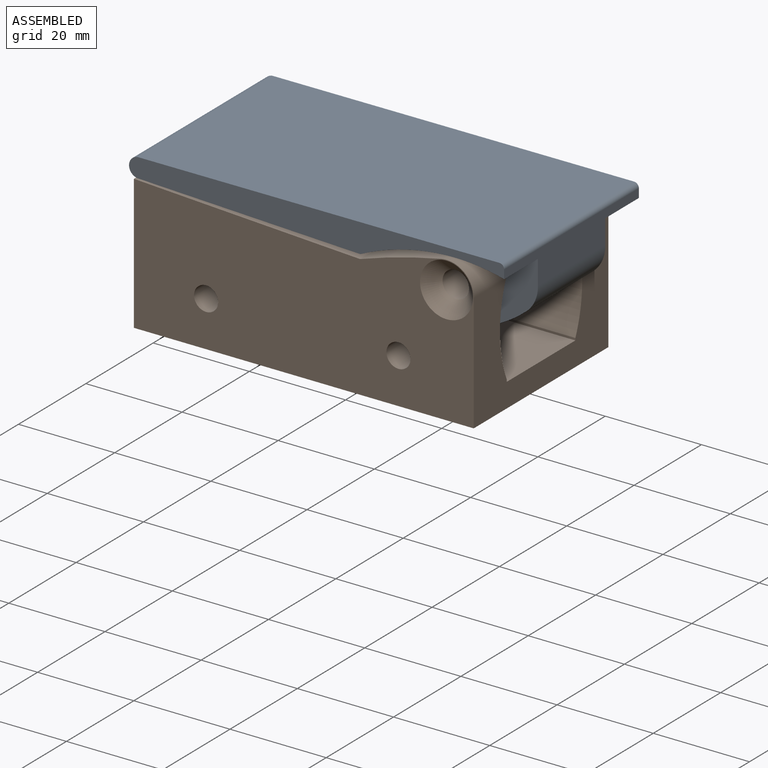
[diagram: assembled view]
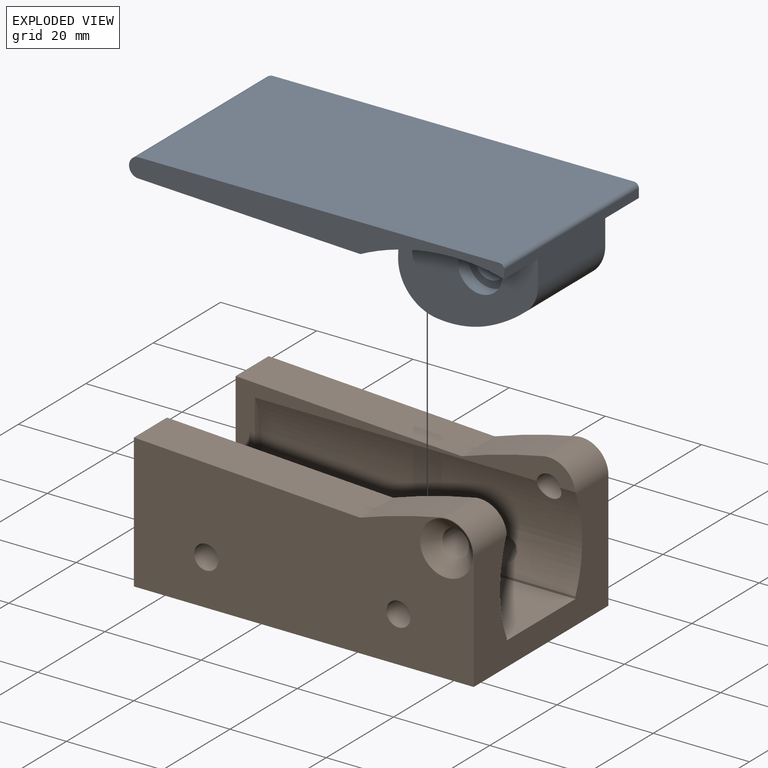
[diagram: exploded view]
GUIDED TOUR — FREECAD ASSEMBLY "push lever"

This assembly has 2 components, labeled P0..P1 below (a component is one placed body or linked part; the same part can appear more than once), held together by 1 modeled joint. A joint is a constraint between two components; its type names the relative motion it leaves free:
  REVOLUTE — leaves rotation about the listed axis free (a hinge).
Axis/direction vectors are unit vectors and 'through' points are millimeter coordinates, both in the assembly's world frame.

MATES
  1. REVOLUTE [Revolute] "Revolute": P0 <-> P1, axis (-0.003, 0.000, 1.000) through (-39.67, -4.73, 23.12) mm

ASSEMBLY ORDER
  1. P0 — the base component [order verified]
  2. P1 [order verified]
Order-tag legend:
  [order verified] — this step's position reverses a verified removal order: the component was checked to insert without passing through the ones already placed.

Of the 2 components, 2 carry a construction recipe — the FreeCAD feature program (sketches with constraints, then the solid features that consume them) that regenerates the part from scratch, quoted from this document or from the linked companion document it references; the rest are supplied as boundary geometry only. The tour below walks the components in assembly order: each is shown spotlighted twice — in the assembled view, then in the exploded view, where a leader line traces a displaced component back to its assembled socket (components that stay in place when exploded have no leader line; saturated green if recipe-attached, orange if geometry-only; every other component desaturated gray) — followed by its recipe or geometry summary and the mates that hold it.
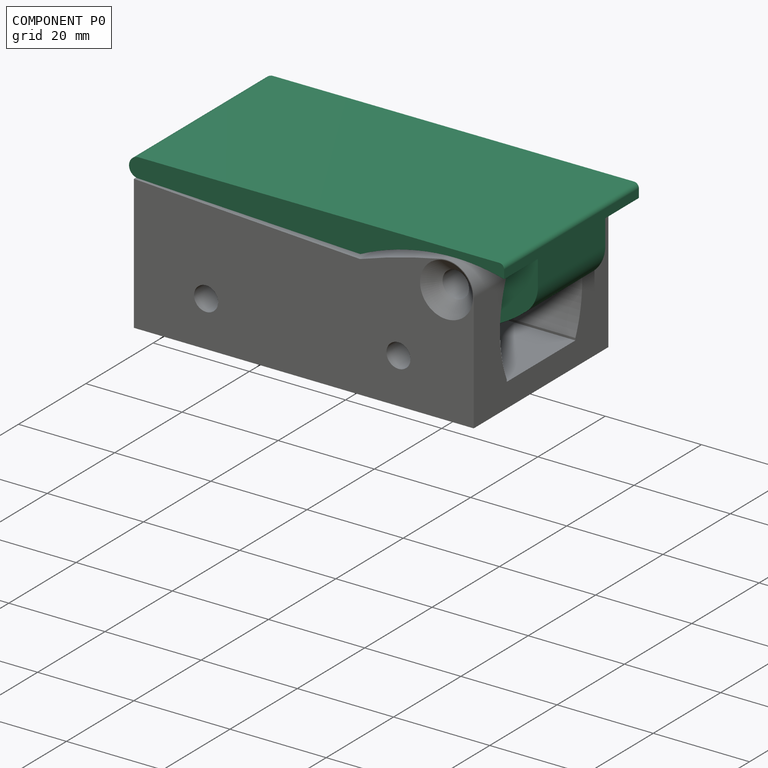
[diagram: component P0 — assembled]
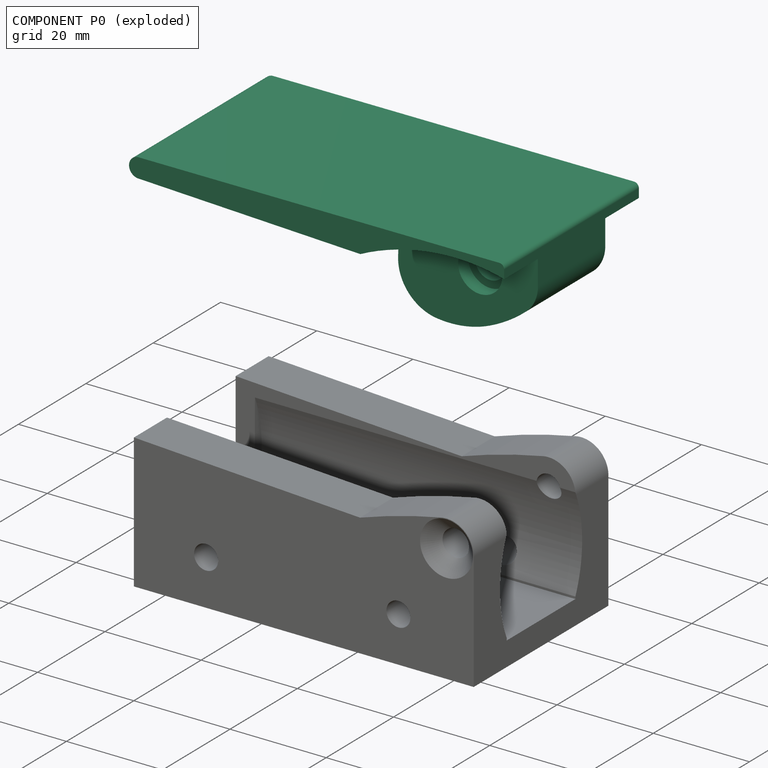
[diagram: component P0 — exploded]
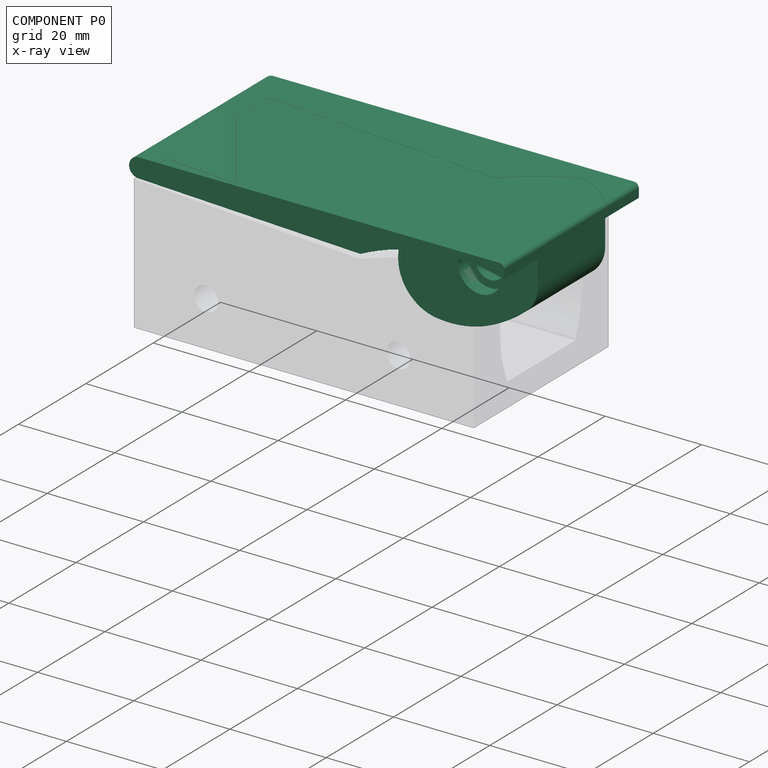
[diagram: component P0 — x-ray view]
COMPONENT P0 — recipe-attached ("Lever001", modeled in this document).
Held by: REVOLUTE mate "Revolute" to P1.
Construction recipe (the document's own serialized feature program — sketch geometry with constraints, then the solid features built on it; lengths are millimeters unless a unit is written):

FEATURE [Sketcher::SketchObject] Sketch
  ArcFitTolerance = 0
  AttachmentSupport = -> [XZ_Plane]
  FullyConstrained = true
  MakeInternals = false
  MapMode = 5
  Placement = pos=(0,0,0) rot=(1,0,0;1.5708rad)
  sketch-geometry (15):
    g0: LineSegment StartX=-64 StartY=8 StartZ=0 EndX=11 EndY=8 EndZ=0
    g1: ArcOfCircle CenterX=11 CenterY=7 CenterZ=0 NormalX=0 NormalY=0 NormalZ=1 AngleXU=0 Radius=1 StartAngle=0 EndAngle=1.5708
    g2: LineSegment StartX=12 StartY=7 StartZ=0 EndX=12 EndY=-2.7e-15 EndZ=0
    g3: ArcOfCircle CenterX=5 CenterY=-9e-16 CenterZ=0 NormalX=0 NormalY=0 NormalZ=1 AngleXU=0 Radius=7 StartAngle=5.41052 EndAngle=6.28319
    g4: ArcOfCircle CenterX=-17.9719 CenterY=1.00094 CenterZ=0 NormalX=0 NormalY=0 NormalZ=1 AngleXU=0 Radius=1 StartAngle=6.24828 EndAngle=7.81064
    g5: LineSegment StartX=-17.9286 StartY=2 StartZ=0 EndX=-64.0867 EndY=4.00188 EndZ=0
    g6: ArcOfCircle CenterX=-64 CenterY=6 CenterZ=0 NormalX=0 NormalY=0 NormalZ=1 AngleXU=0 Radius=2 StartAngle=1.5708 EndAngle=4.66905
    g7: Circle CenterX=0 CenterY=0 CenterZ=0 NormalX=0 NormalY=0 NormalZ=1 AngleXU=0 Radius=3.1
    g8: LineSegment StartX=-16.9725 StartY=0.96604 StartZ=0 EndX=-17.0772 EndY=-2.03213 EndZ=0
    g9: LineSegment [constr] StartX=0 StartY=0 StartZ=0 EndX=12 EndY=-2.6e-15 EndZ=0
    g10: LineSegment [constr] StartX=0 StartY=0 StartZ=0 EndX=0 EndY=8 EndZ=0
    g11: LineSegment [constr] StartX=-17.9286 StartY=2 StartZ=0 EndX=-17.9286 EndY=8 EndZ=0
    g12: ArcOfCircle CenterX=-9.78412 CenterY=17.619 CenterZ=0 NormalX=0 NormalY=0 NormalZ=1 AngleXU=0 Radius=30 StartAngle=5.11381 EndAngle=5.41052
    g13: ArcOfCircle CenterX=-7.84005 CenterY=-2.3547 CenterZ=0 NormalX=0 NormalY=0 NormalZ=1 AngleXU=0 Radius=9.24281 StartAngle=3.10669 EndAngle=4.59022
    g14: ArcOfCircle CenterX=-6.374 CenterY=9.58529 CenterZ=0 NormalX=0 NormalY=0 NormalZ=1 AngleXU=0 Radius=21.2725 StartAngle=4.59022 EndAngle=5.11381
  constraints (39):
    c: Tangent(g0,g1) = 1.5708
    c: Tangent(g1,g2) = 1.5708
    c: Tangent(g5,g6) = 1.5708
    c: Tangent(g6,g0) = 1.5708
    c: Radius(g6) = 2
    c: Radius(g1) = 1
    c: Diameter(g7) = 6.2
    c: Distance(g8) = 3
    c: Perpendicular(g2,g9)
    c: PointOnObject(g10,g0)
    c: Perpendicular(g10,g0)
    c: Coincident(g2,g9)
    c: Perpendicular(g0,g2)
    c: Tangent(g3,g2) = 1.5708
    c: Angle(g0,g8) = 1.53589
    c: Coincident(g7,g-1)
    c: Coincident(g9,g10)
    c: Coincident(g9,g7)
    c: Distance(g9) = 12
    c: Tangent(g4,g5) = -1.5708
    c: Distance(g8,g7) = 17
    c: Radius(g4) = 1
    c: Tangent(g4,g8) = 1.5708
    c: Coincident(g11,g4)
    c: PointOnObject(g11,g0)
    c: Perpendicular(g0,g11)
    c: Distance(g11) = 6
    c: Distance(g10) = 8
    c: Distance(g0,g10) = 64
    c: Horizontal(g0)
    c: Tangent(g12,g3) = -1.5708
    c: Tangent(g13,g8) = -1.5708
    c: Angle(g3) = 0.872665
    c: Radius(g3) = 7
    c: Tangent(g14,g13) = -1.5708
    c: Tangent(g14,g12) = -1.5708
    c: Angle(g13) = 1.48353
    c: Angle(g14) = 0.523599
    c: Radius(g12) = 30
FEATURE [Sketcher::SketchObject] Sketch001
  ArcFitTolerance = 0
  AttachmentOffset = pos=(0,0,10) rot=(0,0,1;0rad)
  AttachmentSupport = -> [XZ_Plane]
  FullyConstrained = true
  MakeInternals = false
  MapMode = 5
  Placement = pos=(0,-10,2.2e-15) rot=(1,0,0;1.5708rad)
  expr: .AttachmentOffset.Base.z = -<<Sketch007>>.Placement.Base.y - <<Pocket001>>.Length
  sketch-geometry (1):
    g0: Circle CenterX=0 CenterY=0 CenterZ=0 NormalX=0 NormalY=0 NormalZ=1 AngleXU=0 Radius=4.6
  constraints (2):
    c: Diameter(g0) = 9.2
    c: Coincident(g0,g-1)
FEATURE [PartDesign::Pad] Pad
  Direction = (0,-1,2e-16)
  Length = 40
  Length2 = 10
  Midplane = true
  Placement = pos=(0,0,0) rot=(1,0,0;1.5708rad)
  Profile = -> Sketch
  ReferenceAxis = -> Sketch [N_Axis]
  Suppressed = false
  Type = 0
FEATURE [Sketcher::SketchObject] Sketch007
  ArcFitTolerance = 0
  AttachmentOffset = pos=(0,0,20) rot=(0,0,1;0rad)
  AttachmentSupport = -> [XZ_Plane]
  FullyConstrained = false
  MakeInternals = false
  MapMode = 5
  Placement = pos=(0,-20,4.4e-15) rot=(1,0,0;1.5708rad)
  expr: .AttachmentOffset.Base.z = <<Pad>>.Length / 2
  sketch-geometry (5):
    g0: LineSegment StartX=12 StartY=5.18435 StartZ=0 EndX=12 EndY=-34.8156 EndZ=0
    g1: LineSegment StartX=12 StartY=-34.8156 StartZ=0 EndX=-17.9286 EndY=-34.8156 EndZ=0
    g2: LineSegment StartX=-17.9286 StartY=2 StartZ=0 EndX=-17.9286 EndY=-34.8156 EndZ=0
    g3: ArcOfCircle CenterX=1.93151 CenterY=-39.1603 CenterZ=0 NormalX=0 NormalY=0 NormalZ=1 AngleXU=0 Radius=45.7011 StartAngle=1.61307 EndAngle=2.02035
    g4: ArcOfCircle CenterX=1.69055 CenterY=-33.4643 CenterZ=0 NormalX=0 NormalY=0 NormalZ=1 AngleXU=0 Radius=40 StartAngle=1.31012 EndAngle=1.61307
  constraints (11):
    c: Coincident(g1,g0)
    c: Coincident(g1,g2)
    c: Perpendicular(g1,g0)
    c: Perpendicular(g2,g1)
    c: Distance(g0) = 40
    c: Coincident(g3,g2)
    c: PointOnObject(g3,g-2)
    c: Coincident(g4,g0)
    c: Tangent(g4,g3) = -1.5708
    c: Distance(g-1,g3) = 6.5
    c: Radius(g4) = 40
FEATURE [PartDesign::Pocket] Pocket001
  BaseFeature = -> Pad
  Direction = (0,1,-2e-16)
  Length = 10
  Length2 = 5
  Placement = pos=(0,0,0) rot=(1,0,0;1.5708rad)
  Profile = -> Sketch007
  ReferenceAxis = -> Sketch007 [N_Axis]
  Suppressed = false
  Type = 0
FEATURE [PartDesign::Pocket] Pocket
  BaseFeature = -> Pocket001
  Direction = (0,1,-2e-16)
  Length = 3
  Length2 = 5
  Placement = pos=(0,0,0) rot=(1,0,0;1.5708rad)
  Profile = -> Sketch001
  ReferenceAxis = -> Sketch001 [N_Axis]
  Suppressed = false
  Type = 0
FEATURE [PartDesign::Mirrored] Mirrored
  BaseFeature = -> Pocket
  MirrorPlane = -> XZ_Plane
  Originals = -> [Pocket,Pocket001]
  Placement = pos=(0,0,0) rot=(1,0,0;1.5708rad)
  Suppressed = false
  TransformMode = 0
FEATURE [PartDesign::Line] DatumLine  label="AxisDatumLine001"
  AttacherType = Attacher::AttachEngineLine
  AttachmentSupport = -> [Y_Axis]
  Length = 20
  MapMode = 24
  Placement = pos=(0,0,0) rot=(1,0,0;1.5708rad)
  ResizeMode = 0
FEATURE [PartDesign::Body] Body  label="Lever"
  AllowCompound = false
  Group = -> [Sketch,Sketch001,Pad,Pocket001,Sketch007,Pocket,Mirrored,DatumLine]
  Origin = -> Origin
  Tip = -> Mirrored
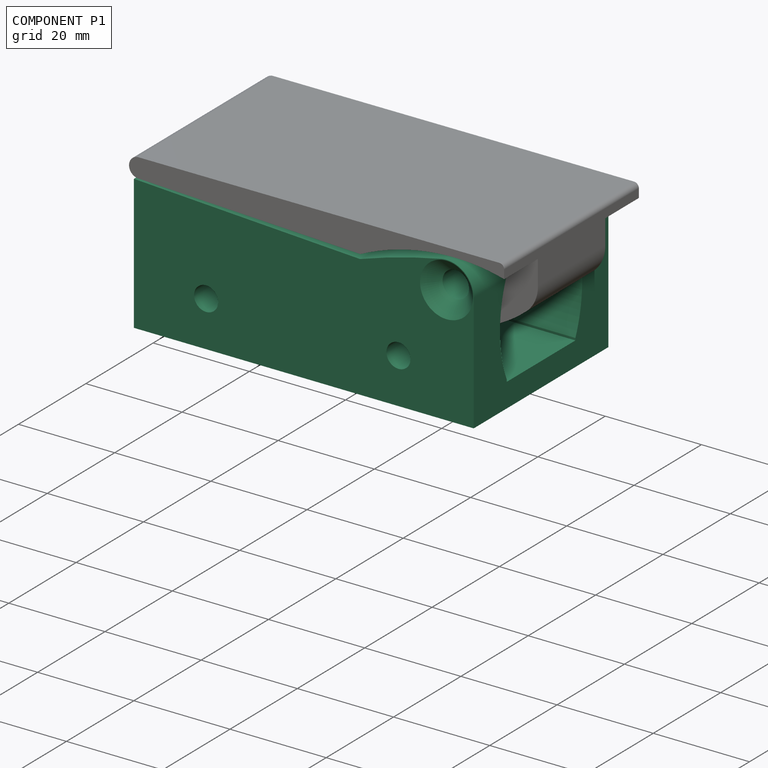
[diagram: component P1 — assembled]
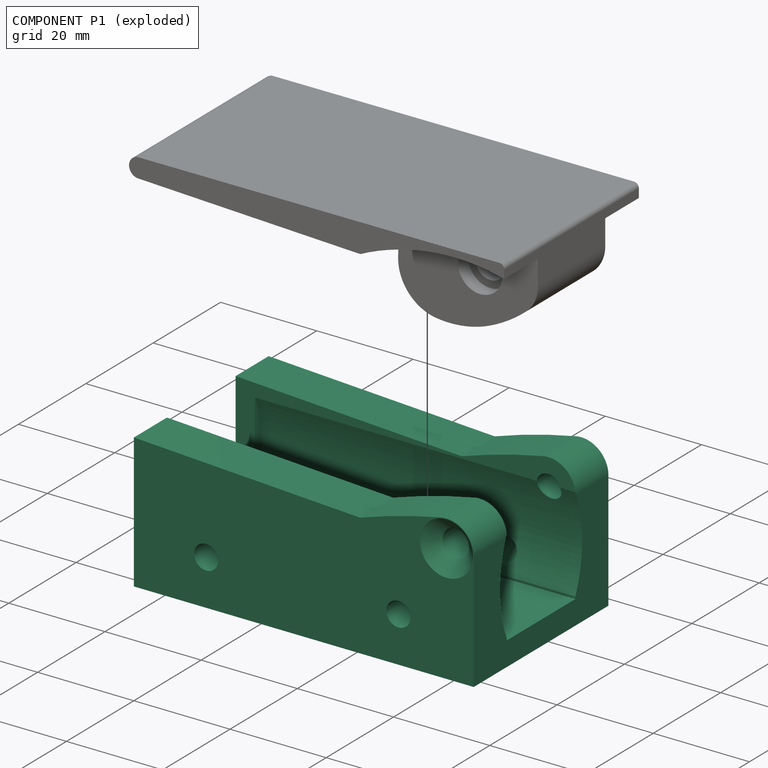
[diagram: component P1 — exploded]
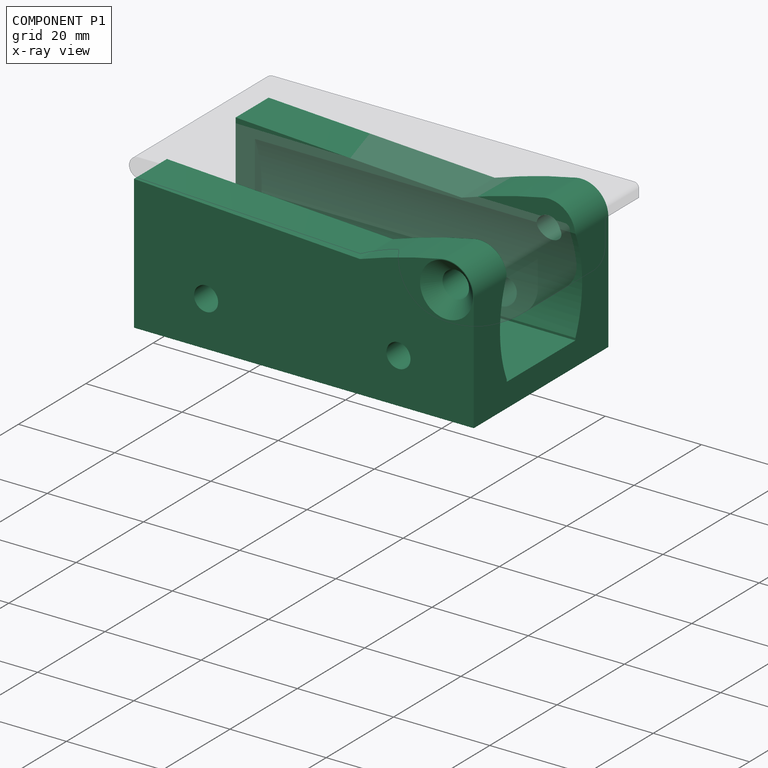
[diagram: component P1 — x-ray view]
COMPONENT P1 — recipe-attached ("Spring carriage001", modeled in this document).
Held by: REVOLUTE mate "Revolute" to P0.
Construction recipe (the document's own serialized feature program — sketch geometry with constraints, then the solid features built on it; lengths are millimeters unless a unit is written):

FEATURE [Sketcher::SketchObject] Sketch009
  ArcFitTolerance = 0
  AttachmentSupport = -> [XZ_Plane002]
  FullyConstrained = true
  MakeInternals = false
  MapMode = 5
  Placement = pos=(0,0,0) rot=(1,0,0;1.5708rad)
  sketch-geometry (7):
    g0: LineSegment StartX=-18 StartY=1 StartZ=0 EndX=-65 EndY=3.5 EndZ=0
    g1: LineSegment StartX=-65 StartY=3.5 StartZ=0 EndX=-65 EndY=-24.5 EndZ=0
    g2: LineSegment StartX=-65 StartY=-24.5 StartZ=0 EndX=5.65 EndY=-24.5 EndZ=0
    g3: LineSegment StartX=5.65 StartY=-24.5 StartZ=0 EndX=5.65 EndY=0 EndZ=0
    g4: ArcOfCircle CenterX=22.8133 CenterY=-117.149 CenterZ=0 NormalX=0 NormalY=0 NormalZ=1 AngleXU=0 Radius=125 StartAngle=1.76313 EndAngle=1.9034
    g5: Circle [constr] CenterX=0 CenterY=0 CenterZ=0 NormalX=0 NormalY=0 NormalZ=1 AngleXU=0 Radius=5.65
    g6: ArcOfCircle CenterX=0 CenterY=0 CenterZ=0 NormalX=0 NormalY=0 NormalZ=1 AngleXU=0 Radius=5.65 StartAngle=0 EndAngle=1.76313
  constraints (19):
    c: Coincident(g0,g1)
    c: Vertical(g1)
    c: Coincident(g1,g2)
    c: Horizontal(g2)
    c: Coincident(g2,g3)
    c: Coincident(g4,g0)
    c: Radius(g4) = 125
    c: DistanceY(g1,g1) = 28  'height'
    c: DistanceX(g0,g0) = 47
    c: DistanceY(g2,g-1) = 24.5  'bottom'
    c: DistanceY(g-1,g0) = 1
    c: Coincident(g5,g-1)
    c: Coincident(g6,g5)
    c: PointOnObject(g6,g5)
    c: Tangent(g6,g4) = -1.5708
    c: Diameter(g5) = 11.3
    c: Tangent(g3,g6) = -1.5708
    c: DistanceX(g1,g5) = 65  'x1'
    c: Perpendicular(g2,g3)
FEATURE [PartDesign::Pad] Pad002
  Direction = (0,-1,2e-16)
  Length = 40
  Length2 = 10
  Midplane = true
  Placement = pos=(0,0,0) rot=(1,0,0;1.5708rad)
  Profile = -> Sketch009
  ReferenceAxis = -> Sketch009 [N_Axis]
  Suppressed = false
  Type = 0
  expr: Length = <<Pad>>.Length
FEATURE [Sketcher::SketchObject] Sketch011  label="Lever axis hole sketch"
  ArcFitTolerance = 0
  AttachmentOffset = pos=(0,0,20) rot=(0,0,1;0rad)
  AttachmentSupport = -> [XZ_Plane002]
  FullyConstrained = true
  MakeInternals = false
  MapMode = 5
  Placement = pos=(0,-20,4.4e-15) rot=(1,0,0;1.5708rad)
  expr: .AttachmentOffset.Base.z = <<Pad002>>.Length / 2
  sketch-geometry (1):
    g0: Circle CenterX=0 CenterY=0 CenterZ=0 NormalX=0 NormalY=0 NormalZ=1 AngleXU=0 Radius=2.5
  constraints (2):
    c: Coincident(g0,g-1)
    c: Diameter(g0) = 5
FEATURE [Sketcher::SketchObject] Sketch015  label="Guide rail sketch"
  ArcFitTolerance = 0
  AttachmentOffset = pos=(0,0,-61) rot=(0,0,1;0rad)
  AttachmentSupport = -> [YZ_Plane002]
  FullyConstrained = false
  MakeInternals = false
  MapMode = 5
  Placement = pos=(-61,0,0) rot=(0.57735,0.57735,0.57735;2.0944rad)
  expr: .AttachmentOffset.Base.z = -<<Sketch009>>.Constraints.x1 + 4 mm
  sketch-geometry (4):
    g0: ArcOfCircle CenterX=12.8021 CenterY=-9.25 CenterZ=0 NormalX=0 NormalY=0 NormalZ=1 AngleXU=0 Radius=25 StartAngle=2.71914 EndAngle=3.56405
    g1: ArcOfCircle CenterX=-12.8021 CenterY=-9.25 CenterZ=0 NormalX=0 NormalY=0 NormalZ=1 AngleXU=0 Radius=25 StartAngle=5.86073 EndAngle=6.70564
    g2: LineSegment StartX=10 StartY=-19.5 StartZ=0 EndX=-10 EndY=-19.5 EndZ=0
    g3: LineSegment StartX=-10 StartY=1 StartZ=0 EndX=10 EndY=1 EndZ=0
  constraints (10):
    c: Coincident(g0,g2)
    c: Coincident(g1,g2)
    c: Symmetric(g1,g0,g-2)
    c: Radius(g1) = 25
    c: Equal(g0,g1)
    c: DistanceX(g2,g2) = 20
    c: Horizontal(g1,g0)
    c: Vertical(g0,g0)
    c: Coincident(g3,g0)
    c: Coincident(g3,g1)
FEATURE [Sketcher::SketchObject] Sketch016
  ArcFitTolerance = 0
  AttachmentSupport = -> [YZ_Plane002]
  FullyConstrained = false
  MakeInternals = false
  MapMode = 5
  Placement = pos=(0,0,0) rot=(0.57735,0.57735,0.57735;2.0944rad)
  expr: .Constraints.width = <<Pad>>.Length - 2 * <<Pocket001>>.Length + 0.4 mm
  sketch-geometry (4):
    g0: LineSegment StartX=-10.2 StartY=50.5 StartZ=0 EndX=-10.2 EndY=-19.5 EndZ=0
    g1: LineSegment StartX=-10.2 StartY=-19.5 StartZ=0 EndX=10.2 EndY=-19.5 EndZ=0
    g2: LineSegment StartX=10.2 StartY=-19.5 StartZ=0 EndX=10.2 EndY=50.5 EndZ=0
    g3: LineSegment StartX=10.2 StartY=50.5 StartZ=0 EndX=-10.2 EndY=50.5 EndZ=0
  constraints (10):
    c: Coincident(g0,g1)
    c: Coincident(g1,g2)
    c: Coincident(g2,g3)
    c: Coincident(g3,g0)
    c: Vertical(g0)
    c: Vertical(g2)
    c: Horizontal(g1)
    c: Symmetric(g2,g0,g-2)
    c: DistanceY(g2,g2) = 70
    c: DistanceX(g1,g1) = 20.4  'width'
FEATURE [PartDesign::Pocket] Pocket006
  BaseFeature = -> Pad002
  Direction = (-1,0,0)
  Length = 5
  Length2 = 5
  Midplane = true
  Placement = pos=(0,0,0) rot=(1,0,0;1.5708rad)
  Profile = -> Sketch016
  ReferenceAxis = -> Sketch016 [N_Axis]
  Suppressed = false
  Type = 1
FEATURE [PartDesign::Pocket] Pocket003  label="Lever axis hole"
  BaseFeature = -> Pocket006
  Direction = (0,1,-2e-16)
  Length = 5
  Length2 = 5
  Placement = pos=(0,0,0) rot=(1,0,0;1.5708rad)
  Profile = -> Sketch011
  ReferenceAxis = -> Sketch011 [N_Axis]
  Suppressed = false
  Type = 1
FEATURE [PartDesign::Hole] Hole001  label="Lever axis hole enlarge one side"
  BaseFeature = -> Pocket003
  CustomThreadClearance = 0
  Depth = 20
  DepthType = 0
  Diameter = 5.5
  DrillForDepth = false
  DrillPoint = 1
  DrillPointAngle = 118
  HoleCutCountersinkAngle = 90
  HoleCutCustomValues = false
  HoleCutDepth = 0
  HoleCutDiameter = 11
  HoleCutType = 2
  ModelThread = false
  Placement = pos=(0,0,0) rot=(1,0,0;1.5708rad)
  Profile = -> Sketch011
  Suppressed = false
  Tapered = false
  TaperedAngle = 90
  ThreadClass = 0
  ThreadDepth = 20
  ThreadDepthType = 0
  ThreadDirection = 0
  ThreadFit = 0
  ThreadSize = 0
  ThreadType = 0
  Threaded = false
  UseCustomThreadClearance = false
  expr: Depth = <<Pad002>>.Length / 2
FEATURE [PartDesign::Pocket] Pocket005  label="Guide rail pocket"
  BaseFeature = -> Hole001
  Direction = (-1,0,0)
  Length = 5
  Length2 = 5
  Placement = pos=(0,0,0) rot=(1,0,0;1.5708rad)
  Profile = -> Sketch015
  ReferenceAxis = -> Sketch015 [N_Axis]
  Refine = true
  Reversed = true
  Suppressed = false
  Type = 1
FEATURE [Sketcher::SketchObject] Sketch022  label="Carriage mounting holes sketch"
  ArcFitTolerance = 0
  AttachmentSupport = -> [XZ_Plane002]
  FullyConstrained = true
  MakeInternals = false
  MapMode = 5
  Placement = pos=(0,0,0) rot=(1,0,0;1.5708rad)
  sketch-geometry (2):
    g0: Circle CenterX=-10 CenterY=-15 CenterZ=0 NormalX=0 NormalY=0 NormalZ=1 AngleXU=0 Radius=2.5
    g1: Circle CenterX=-50 CenterY=-15 CenterZ=0 NormalX=0 NormalY=0 NormalZ=1 AngleXU=0 Radius=2.5
  constraints (6):
    c: Equal(g1,g0)
    c: Diameter(g0) = 5
    c: DistanceX(g1,g-1) = 50
    c: Horizontal(g1,g0)
    c: DistanceY(g1,g-1) = 15
    c: DistanceX(g1,g0) = 40
FEATURE [PartDesign::Line] DatumLine001  label="AxisDatumLine"
  AttacherType = Attacher::AttachEngineLine
  AttachmentSupport = -> [Y_Axis002]
  Length = 20
  MapMode = 24
  Placement = pos=(0,0,0) rot=(1,0,0;1.5708rad)
  ResizeMode = 0
FEATURE [PartDesign::Line] DatumLine002  label="GuideRailDatumLine"
  AttacherType = Attacher::AttachEngineLine
  AttachmentOffset = pos=(0,-9.5,0) rot=(0,0,1;0rad)
  AttachmentSupport = -> [X_Axis002]
  Length = 20
  MapMode = 29
  Placement = pos=(0,0,-9.5) rot=(0.57735,0.57735,0.57735;2.0944rad)
  ResizeMode = 0
FEATURE [PartDesign::Pocket] Pocket011  label="Carriage mounting holes"
  BaseFeature = -> Pocket005
  Direction = (0,1,-2e-16)
  Length = 5
  Length2 = 5
  Midplane = true
  Placement = pos=(0,0,0) rot=(1,0,0;1.5708rad)
  Profile = -> Sketch022
  ReferenceAxis = -> Sketch022 [N_Axis]
  Suppressed = false
  Type = 1
FEATURE [PartDesign::Body] Body002  label="Spring carriage"
  AllowCompound = false
  Group = -> [Sketch009,Pad002,Pocket006,Sketch016,Sketch011,Pocket003,Hole001,Sketch015,Pocket005,Sketch022,DatumLine001,DatumLine002,Pocket011]
  Origin = -> Origin002
  Tip = -> Pocket011
PROVENANCE & LICENSES
Assembly and component geometry: a FreeCAD (.FCStd) document from a public repository crawl; components, placements and joints were extracted with FreeCAD and each solid tessellated.
Construction recipes: the document's own serialized feature recipes (and, for linked parts, the recipes of companion documents from the same project).
License: as declared in the source repository (recorded in the dataset sidecar).
Joints: native FreeCAD joints and A2plus constraints are mapped to standard mate types.
Verification: 2 of this assembly's 2 components carry a construction recipe (2 from this document itself); the rest are geometry-only. Every component's tessellation passed the extraction mesh gates (mesh-volume checksum against the B-rep where available, bounding-box inflation <= 2%).
Renders: orthographic iso camera (az 35 / el 25); the floor grid conveys scale (grid pitch printed in each image; no ruler). In the exploded view each component is displaced by its stored offset vector: the offsets alone carry the explosion direction (mate normal/axis signs are not orientation cues and do not encode it), and separation distances are assigned per mate-chain, not proportionally to assembly-order depth.
